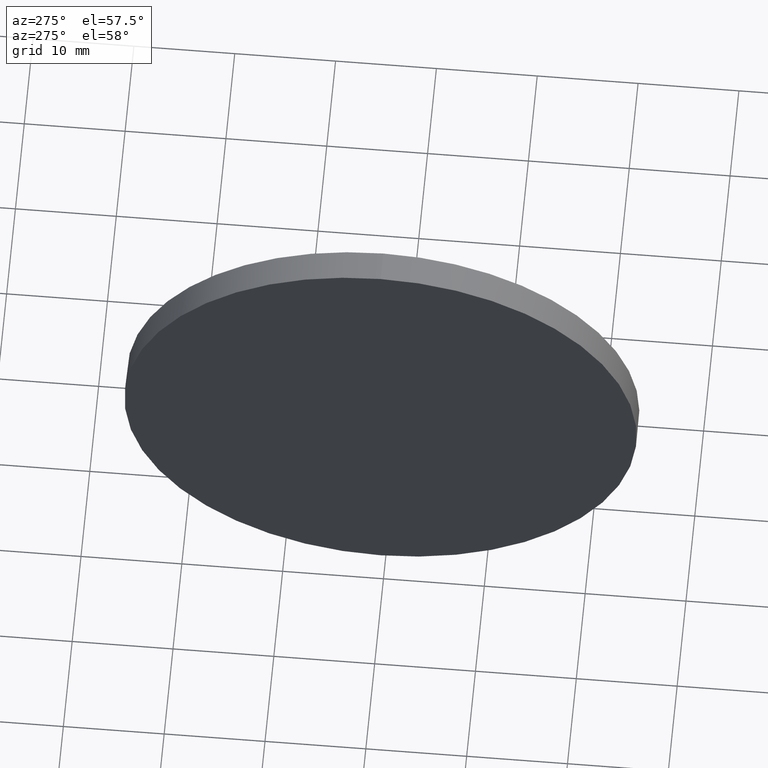
[diagram: clean part render]
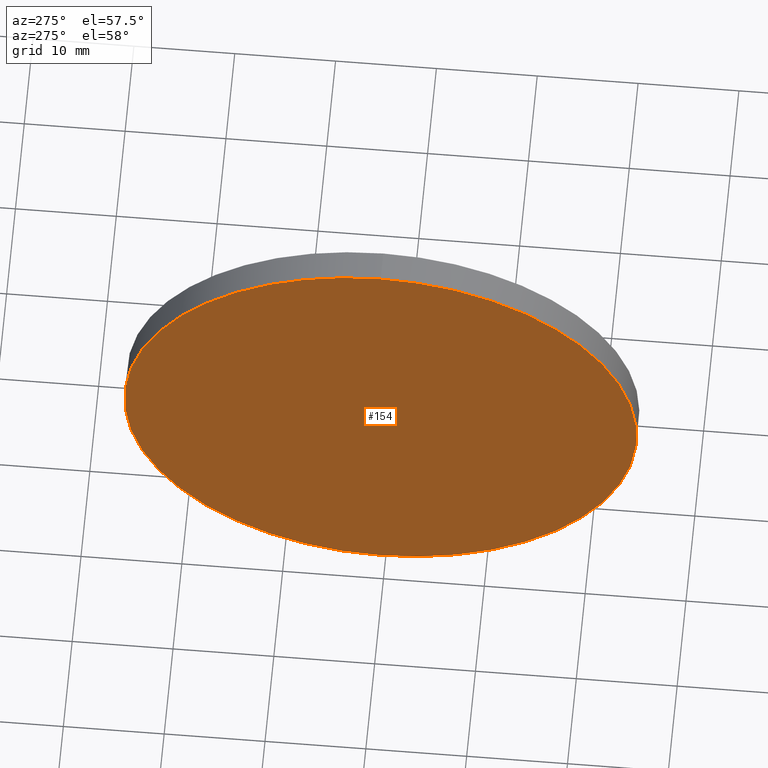
[diagram: same view with one face highlighted and labeled with its STEP entity id]
A machine part, auxiliary view. The second image highlights one B-rep face of the part: STEP entity #154.
In plain terms, the highlighted planar face has unit normal (1, 0, 0).
Its self-contained STEP definition (entity closure, byte-faithful):
#2 = VERTEX_POINT ( 'NONE', #66 ) ;
#8 = EDGE_LOOP ( 'NONE', ( #40, #80 ) ) ;
#20 = EDGE_CURVE ( 'NONE', #57, #2, #157, .T. ) ;
#21 = EDGE_CURVE ( 'NONE', #2, #57, #76, .T. ) ;
#31 = DIRECTION ( 'NONE',  ( 1.000000000000000000, 0.0000000000000000000, 0.0000000000000000000 ) ) ;
#38 = DIRECTION ( 'NONE',  ( -1.000000000000000000, -0.0000000000000000000, -0.0000000000000000000 ) ) ;
#39 = DIRECTION ( 'NONE',  ( -1.000000000000000000, -0.0000000000000000000, -0.0000000000000000000 ) ) ;
#40 = ORIENTED_EDGE ( 'NONE', *, *, #21, .T. ) ;
#44 = CARTESIAN_POINT ( 'NONE',  ( 232.0208200792423800, 130.4671098528243900, 0.0000000000000000000 ) ) ;
#57 = VERTEX_POINT ( 'NONE', #65 ) ;
#58 = PLANE ( 'NONE',  #129 ) ;
#65 = CARTESIAN_POINT ( 'NONE',  ( 232.0208200792423800, 130.4671098528243900, -25.40000000000000600 ) ) ;
#66 = CARTESIAN_POINT ( 'NONE',  ( 232.0208200792423800, 130.4671098528243900, 25.40000000000000600 ) ) ;
#76 = CIRCLE ( 'NONE', #174, 25.40000000000000600 ) ;
#80 = ORIENTED_EDGE ( 'NONE', *, *, #20, .T. ) ;
#100 = CARTESIAN_POINT ( 'NONE',  ( 232.0208200792423800, 130.4671098528243900, 0.0000000000000000000 ) ) ;
#101 = CARTESIAN_POINT ( 'NONE',  ( 232.0208200792423800, 130.4671098528243900, 0.0000000000000000000 ) ) ;
#102 = AXIS2_PLACEMENT_3D ( 'NONE', #100, #39, #114 ) ;
#114 = DIRECTION ( 'NONE',  ( 0.0000000000000000000, 0.0000000000000000000, 1.000000000000000000 ) ) ;
#119 = FACE_OUTER_BOUND ( 'NONE', #8, .T. ) ;
#129 = AXIS2_PLACEMENT_3D ( 'NONE', #44, #31, #151 ) ;
#151 = DIRECTION ( 'NONE',  ( 0.0000000000000000000, 0.0000000000000000000, -1.000000000000000000 ) ) ;
#154 = ADVANCED_FACE ( 'NONE', ( #119 ), #58, .F. ) ;
#157 = CIRCLE ( 'NONE', #102, 25.40000000000000600 ) ;
#174 = AXIS2_PLACEMENT_3D ( 'NONE', #101, #38, #176 ) ;
#176 = DIRECTION ( 'NONE',  ( 0.0000000000000000000, 0.0000000000000000000, 1.000000000000000000 ) ) ;